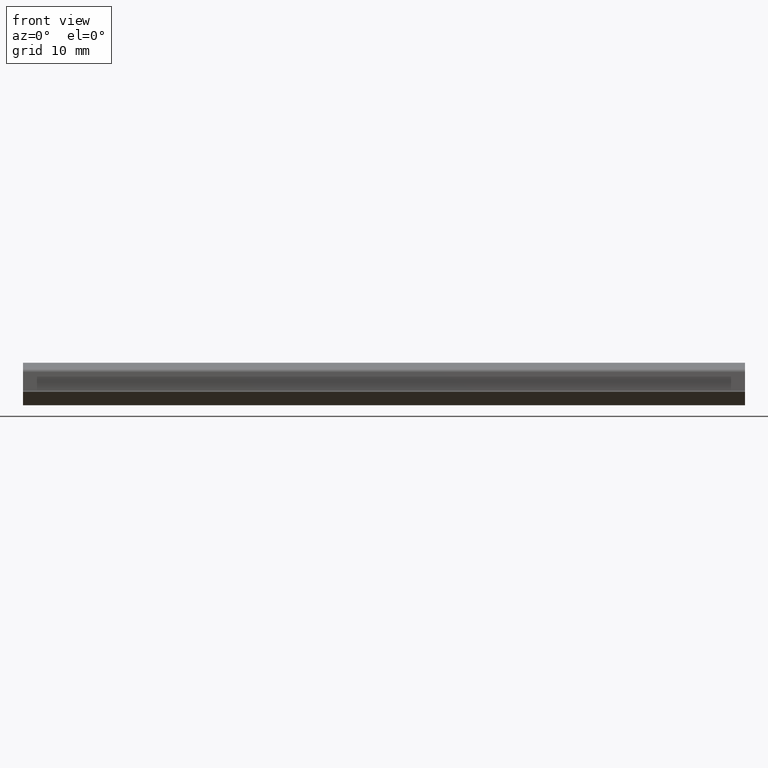
[diagram: clean part render]
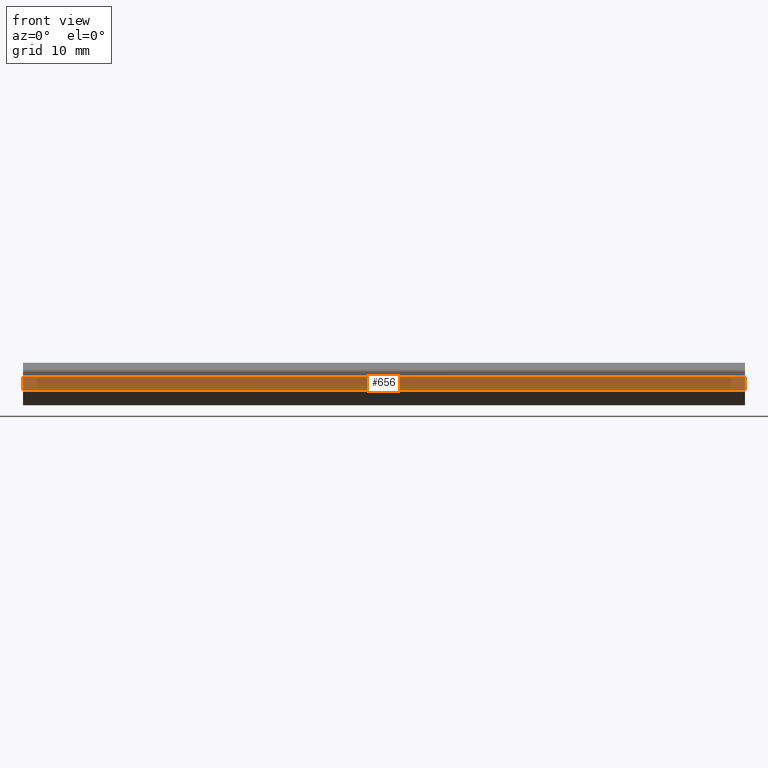
[diagram: same view with one face highlighted and labeled with its STEP entity id]
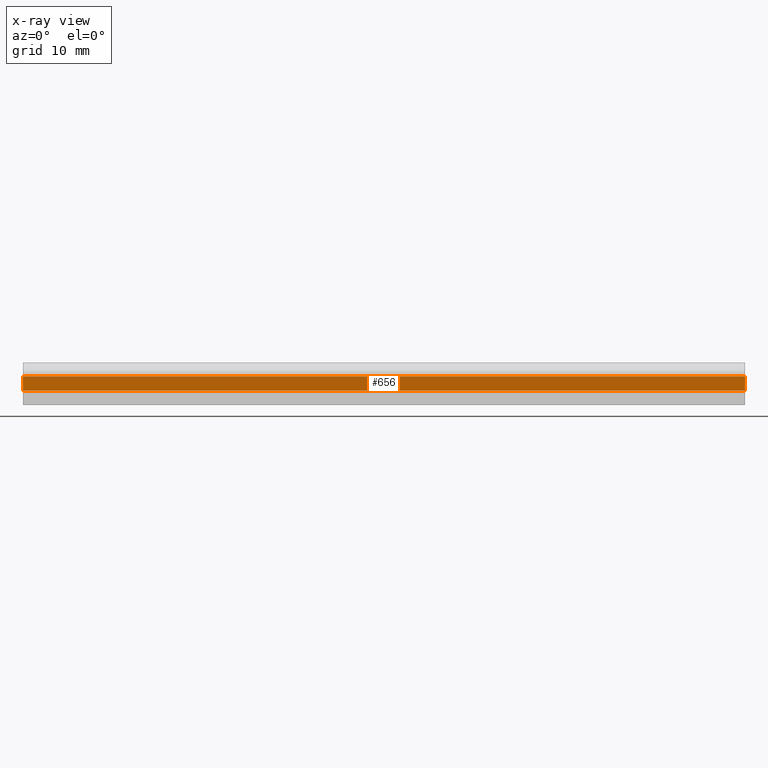
[diagram: x-ray of the same camera — body ghosted, the highlighted face saturated]
A machine part, front view. The second image highlights one B-rep face of the part: STEP entity #656.
The next image is the same camera in x-ray: the body ghosted, the highlighted face saturated — about 0% of this face is hidden behind the body in this view.
In plain terms, the highlighted planar face has unit normal (0, 1, 0).
Its self-contained STEP definition (entity closure, byte-faithful):
#49=CARTESIAN_POINT('',(100.0,-5.499999999999989,-1.650281450180138));
#50=VERTEX_POINT('',#49);
#236=CARTESIAN_POINT('',(100.0,-5.499999999999989,0.349718549819862));
#237=VERTEX_POINT('',#236);
#244=CARTESIAN_POINT('',(100.0,-5.499999999999989,0.349718549819862));
#245=DIRECTION('',(0.0,0.0,-1.0));
#246=VECTOR('',#245,2.0);
#247=LINE('',#244,#246);
#248=EDGE_CURVE('',#237,#50,#247,.T.);
#276=CARTESIAN_POINT('',(3.367779E-016,-5.499999999999996,-1.650281450180138));
#277=VERTEX_POINT('',#276);
#284=CARTESIAN_POINT('',(3.367779E-016,-5.499999999999995,0.349718549819862));
#285=VERTEX_POINT('',#284);
#286=CARTESIAN_POINT('',(3.367779E-016,-5.499999999999995,0.349718549819862));
#287=DIRECTION('',(0.0,0.0,-1.0));
#288=VECTOR('',#287,2.0);
#289=LINE('',#286,#288);
#290=EDGE_CURVE('',#285,#277,#289,.T.);
#630=CARTESIAN_POINT('',(100.0,-5.499999999999989,0.349718549819862));
#631=DIRECTION('',(-1.0,0.0,0.0));
#632=VECTOR('',#631,100.0);
#633=LINE('',#630,#632);
#634=EDGE_CURVE('',#237,#285,#633,.T.);
#640=CARTESIAN_POINT('',(105.0,-5.499999999999989,-1.750281450180138));
#641=DIRECTION('',(0.0,1.0,0.0));
#642=DIRECTION('',(-1.0,0.0,0.0));
#643=AXIS2_PLACEMENT_3D('',#640,#641,#642);
#644=PLANE('',#643);
#645=ORIENTED_EDGE('',*,*,#634,.T.);
#646=ORIENTED_EDGE('',*,*,#290,.T.);
#647=CARTESIAN_POINT('',(100.0,-5.499999999999989,-1.650281450180138));
#648=DIRECTION('',(-1.0,0.0,0.0));
#649=VECTOR('',#648,100.0);
#650=LINE('',#647,#649);
#651=EDGE_CURVE('',#50,#277,#650,.T.);
#652=ORIENTED_EDGE('',*,*,#651,.F.);
#653=ORIENTED_EDGE('',*,*,#248,.F.);
#654=EDGE_LOOP('',(#645,#646,#652,#653));
#655=FACE_OUTER_BOUND('',#654,.T.);
#656=ADVANCED_FACE('',(#655),#644,.F.);